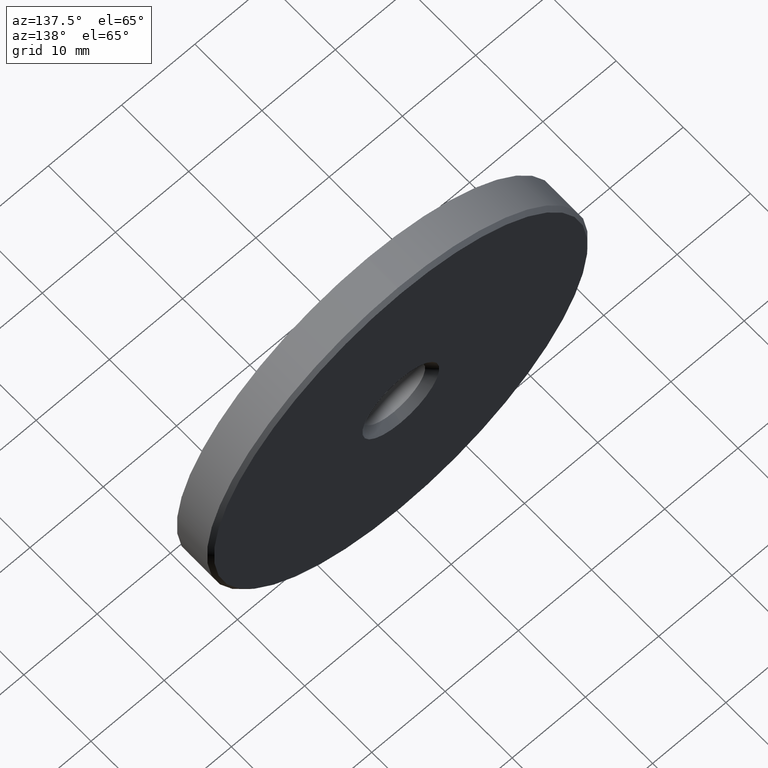
[diagram: clean part render]
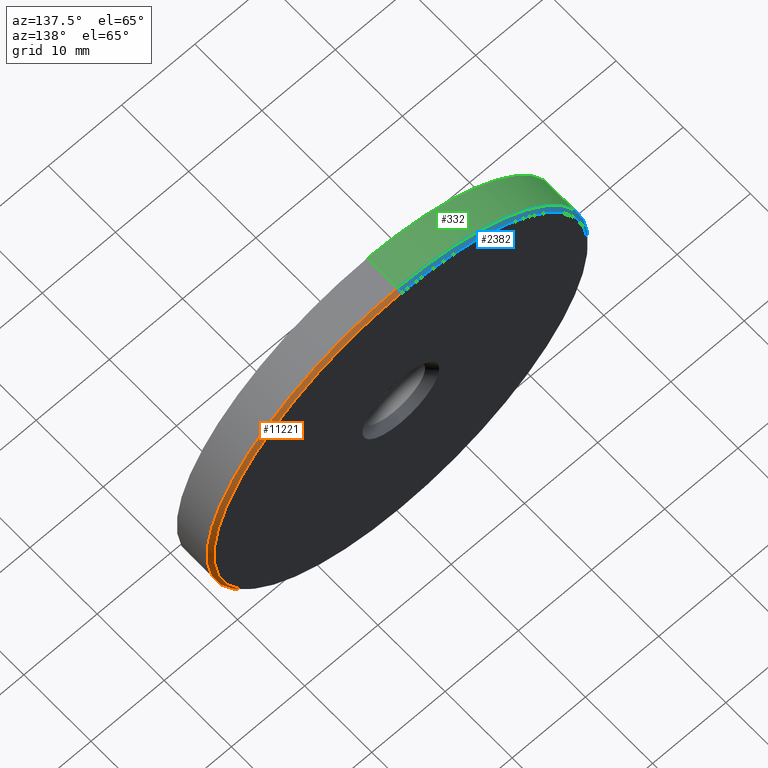
[diagram: same view with three faces highlighted in distinct colors, each labeled with its STEP entity id]
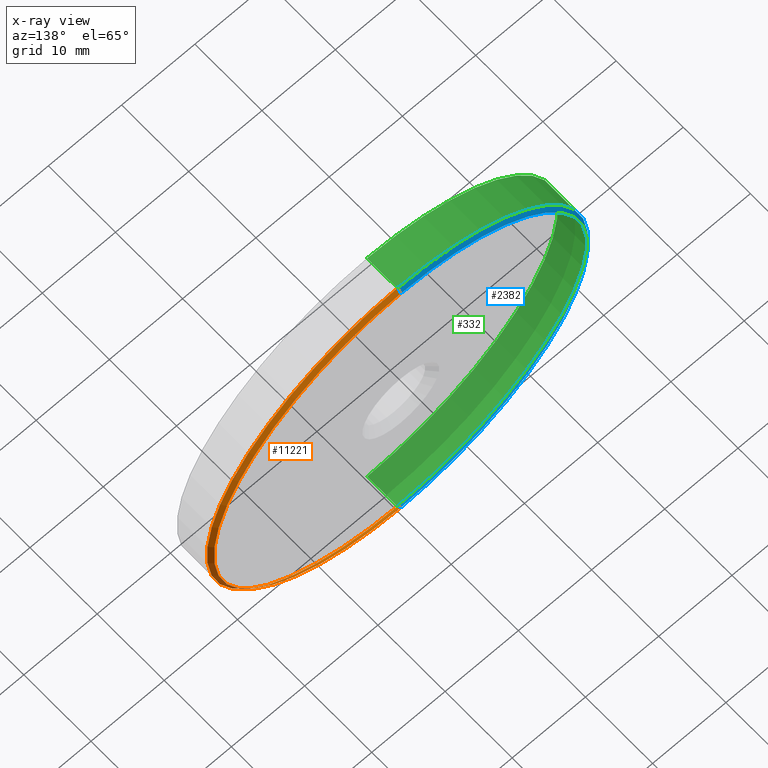
[diagram: x-ray of the same camera — body ghosted, the three highlighted faces saturated]
A machine part, auxiliary view with three faces highlighted in distinct colors.
The next image is the same camera in x-ray (body ghosted, the three faces saturated) — at least one of them is partly hidden behind the body in this view.
Their STEP definitions:

[orange] entity #11221 — the highlighted conical surface has half-angle 45 deg.
#213 = EDGE_CURVE ( 'NONE', #6262, #479, #11519, .T. ) ;
#326 = ORIENTED_EDGE ( 'NONE', *, *, #11776, .F. ) ;
#339 = DIRECTION ( 'NONE',  ( 0.000000000000000000, -0.7071067811865451302, -0.7071067811865500152 ) ) ;
#479 = VERTEX_POINT ( 'NONE', #11672 ) ;
#487 = ORIENTED_EDGE ( 'NONE', *, *, #8483, .F. ) ;
#591 = VECTOR ( 'NONE', #1959, 1000.000000000000114 ) ;
#744 = AXIS2_PLACEMENT_3D ( 'NONE', #12241, #14662, #3861 ) ;
#989 = CARTESIAN_POINT ( 'NONE',  ( 0.000000000000000000, 2.500000000000000000, 0.000000000000000000 ) ) ;
#1067 = VERTEX_POINT ( 'NONE', #11909 ) ;
#1959 = DIRECTION ( 'NONE',  ( 8.659560562354962440E-17, -0.7071067811865451302, 0.7071067811865500152 ) ) ;
#2118 = DIRECTION ( 'NONE',  ( 0.000000000000000000, 0.000000000000000000, 1.000000000000000000 ) ) ;
#2896 = CARTESIAN_POINT ( 'NONE',  ( 3.153465507804434404E-15, 2.500000000000000000, 25.50000000000000000 ) ) ;
#3280 = VECTOR ( 'NONE', #339, 1000.000000000000114 ) ;
#3474 = LINE ( 'NONE', #7269, #3280 ) ;
#3604 = EDGE_LOOP ( 'NONE', ( #487, #11749, #12016, #326 ) ) ;
#3861 = DIRECTION ( 'NONE',  ( 0.000000000000000000, 0.000000000000000000, -1.000000000000000000 ) ) ;
#4391 = CIRCLE ( 'NONE', #13470, 26.00000000000000000 ) ;
#4523 = CARTESIAN_POINT ( 'NONE',  ( 0.000000000000000000, 2.000000000000003553, 0.000000000000000000 ) ) ;
#5131 = CIRCLE ( 'NONE', #7583, 25.50000000000000000 ) ;
#5978 = FACE_OUTER_BOUND ( 'NONE', #3604, .T. ) ;
#6262 = VERTEX_POINT ( 'NONE', #2896 ) ;
#6927 = VERTEX_POINT ( 'NONE', #12800 ) ;
#7269 = CARTESIAN_POINT ( 'NONE',  ( 0.000000000000000000, 2.000000000000003553, -26.00000000000000000 ) ) ;
#7583 = AXIS2_PLACEMENT_3D ( 'NONE', #989, #14230, #9417 ) ;
#7881 = CARTESIAN_POINT ( 'NONE',  ( 3.184081677783118191E-15, 2.000000000000003553, 26.00000000000000000 ) ) ;
#8483 = EDGE_CURVE ( 'NONE', #6262, #1067, #5131, .T. ) ;
#9366 = DIRECTION ( 'NONE',  ( -0.000000000000000000, -1.000000000000000000, -0.000000000000000000 ) ) ;
#9417 = DIRECTION ( 'NONE',  ( 0.000000000000000000, 0.000000000000000000, 1.000000000000000000 ) ) ;
#10344 = EDGE_CURVE ( 'NONE', #6927, #479, #4391, .T. ) ;
#11221 = ADVANCED_FACE ( 'NONE', ( #5978 ), #15596, .T. ) ;
#11519 = LINE ( 'NONE', #7881, #591 ) ;
#11672 = CARTESIAN_POINT ( 'NONE',  ( 3.184081677783118191E-15, 2.000000000000003553, 26.00000000000000000 ) ) ;
#11749 = ORIENTED_EDGE ( 'NONE', *, *, #213, .T. ) ;
#11776 = EDGE_CURVE ( 'NONE', #1067, #6927, #3474, .T. ) ;
#11909 = CARTESIAN_POINT ( 'NONE',  ( 0.000000000000000000, 2.500000000000000000, -25.50000000000000000 ) ) ;
#12016 = ORIENTED_EDGE ( 'NONE', *, *, #10344, .F. ) ;
#12241 = CARTESIAN_POINT ( 'NONE',  ( 0.000000000000000000, 2.000000000000003553, 0.000000000000000000 ) ) ;
#12800 = CARTESIAN_POINT ( 'NONE',  ( 0.000000000000000000, 2.000000000000003553, -26.00000000000000000 ) ) ;
#13470 = AXIS2_PLACEMENT_3D ( 'NONE', #4523, #9366, #2118 ) ;
#14230 = DIRECTION ( 'NONE',  ( 0.000000000000000000, 1.000000000000000000, 0.000000000000000000 ) ) ;
#14662 = DIRECTION ( 'NONE',  ( -0.000000000000000000, -1.000000000000000000, -0.000000000000000000 ) ) ;
#15596 = CONICAL_SURFACE ( 'NONE', #744, 26.00000000000000000, 0.7853981633974517207 ) ;

[blue] entity #2382 — the highlighted conical surface has half-angle 45 deg.
#113 = AXIS2_PLACEMENT_3D ( 'NONE', #8237, #3440, #15410 ) ;
#213 = EDGE_CURVE ( 'NONE', #6262, #479, #11519, .T. ) ;
#339 = DIRECTION ( 'NONE',  ( 0.000000000000000000, -0.7071067811865451302, -0.7071067811865500152 ) ) ;
#445 = CARTESIAN_POINT ( 'NONE',  ( 0.000000000000000000, 2.000000000000003553, 0.000000000000000000 ) ) ;
#479 = VERTEX_POINT ( 'NONE', #11672 ) ;
#591 = VECTOR ( 'NONE', #1959, 1000.000000000000114 ) ;
#914 = AXIS2_PLACEMENT_3D ( 'NONE', #445, #6348, #14791 ) ;
#1067 = VERTEX_POINT ( 'NONE', #11909 ) ;
#1959 = DIRECTION ( 'NONE',  ( 8.659560562354962440E-17, -0.7071067811865451302, 0.7071067811865500152 ) ) ;
#2382 = ADVANCED_FACE ( 'NONE', ( #10941 ), #5853, .T. ) ;
#2653 = ORIENTED_EDGE ( 'NONE', *, *, #2929, .F. ) ;
#2896 = CARTESIAN_POINT ( 'NONE',  ( 3.153465507804434404E-15, 2.500000000000000000, 25.50000000000000000 ) ) ;
#2929 = EDGE_CURVE ( 'NONE', #1067, #6262, #8506, .T. ) ;
#3280 = VECTOR ( 'NONE', #339, 1000.000000000000114 ) ;
#3440 = DIRECTION ( 'NONE',  ( 0.000000000000000000, 1.000000000000000000, 0.000000000000000000 ) ) ;
#3474 = LINE ( 'NONE', #7269, #3280 ) ;
#5028 = EDGE_CURVE ( 'NONE', #479, #6927, #9972, .T. ) ;
#5853 = CONICAL_SURFACE ( 'NONE', #914, 26.00000000000000000, 0.7853981633974517207 ) ;
#6262 = VERTEX_POINT ( 'NONE', #2896 ) ;
#6348 = DIRECTION ( 'NONE',  ( -0.000000000000000000, -1.000000000000000000, -0.000000000000000000 ) ) ;
#6831 = DIRECTION ( 'NONE',  ( 0.000000000000000000, 0.000000000000000000, 1.000000000000000000 ) ) ;
#6927 = VERTEX_POINT ( 'NONE', #12800 ) ;
#7269 = CARTESIAN_POINT ( 'NONE',  ( 0.000000000000000000, 2.000000000000003553, -26.00000000000000000 ) ) ;
#7280 = ORIENTED_EDGE ( 'NONE', *, *, #213, .F. ) ;
#7324 = ORIENTED_EDGE ( 'NONE', *, *, #11776, .T. ) ;
#7881 = CARTESIAN_POINT ( 'NONE',  ( 3.184081677783118191E-15, 2.000000000000003553, 26.00000000000000000 ) ) ;
#8237 = CARTESIAN_POINT ( 'NONE',  ( 0.000000000000000000, 2.500000000000000000, 0.000000000000000000 ) ) ;
#8506 = CIRCLE ( 'NONE', #113, 25.50000000000000000 ) ;
#9972 = CIRCLE ( 'NONE', #14268, 26.00000000000000000 ) ;
#10063 = EDGE_LOOP ( 'NONE', ( #7280, #2653, #7324, #14573 ) ) ;
#10941 = FACE_OUTER_BOUND ( 'NONE', #10063, .T. ) ;
#11519 = LINE ( 'NONE', #7881, #591 ) ;
#11672 = CARTESIAN_POINT ( 'NONE',  ( 3.184081677783118191E-15, 2.000000000000003553, 26.00000000000000000 ) ) ;
#11776 = EDGE_CURVE ( 'NONE', #1067, #6927, #3474, .T. ) ;
#11909 = CARTESIAN_POINT ( 'NONE',  ( 0.000000000000000000, 2.500000000000000000, -25.50000000000000000 ) ) ;
#12800 = CARTESIAN_POINT ( 'NONE',  ( 0.000000000000000000, 2.000000000000003553, -26.00000000000000000 ) ) ;
#13908 = CARTESIAN_POINT ( 'NONE',  ( 0.000000000000000000, 2.000000000000003553, 0.000000000000000000 ) ) ;
#14268 = AXIS2_PLACEMENT_3D ( 'NONE', #13908, #15066, #6831 ) ;
#14573 = ORIENTED_EDGE ( 'NONE', *, *, #5028, .F. ) ;
#14791 = DIRECTION ( 'NONE',  ( 0.000000000000000000, 0.000000000000000000, -1.000000000000000000 ) ) ;
#15066 = DIRECTION ( 'NONE',  ( -0.000000000000000000, -1.000000000000000000, -0.000000000000000000 ) ) ;
#15410 = DIRECTION ( 'NONE',  ( 0.000000000000000000, 0.000000000000000000, 1.000000000000000000 ) ) ;

[green] entity #332 — the highlighted cylindrical surface (partial cylindrical patch) has radius 26 mm, axis along (-0, -1, -0).
#306 = ORIENTED_EDGE ( 'NONE', *, *, #2507, .F. ) ;
#332 = ADVANCED_FACE ( 'NONE', ( #6263 ), #1350, .T. ) ;
#479 = VERTEX_POINT ( 'NONE', #11672 ) ;
#950 = LINE ( 'NONE', #15451, #12097 ) ;
#1282 = DIRECTION ( 'NONE',  ( -0.000000000000000000, -1.000000000000000000, -0.000000000000000000 ) ) ;
#1350 = CYLINDRICAL_SURFACE ( 'NONE', #13591, 26.00000000000000000 ) ;
#2265 = CIRCLE ( 'NONE', #7755, 26.00000000000000000 ) ;
#2372 = CARTESIAN_POINT ( 'NONE',  ( 3.184081677783118191E-15, -2.500000000000000000, 26.00000000000000000 ) ) ;
#2507 = EDGE_CURVE ( 'NONE', #479, #6017, #13762, .T. ) ;
#2550 = CARTESIAN_POINT ( 'NONE',  ( 0.000000000000000000, -2.500000000000000000, -26.00000000000000000 ) ) ;
#2603 = DIRECTION ( 'NONE',  ( 0.000000000000000000, 0.000000000000000000, -1.000000000000000000 ) ) ;
#2949 = VERTEX_POINT ( 'NONE', #2550 ) ;
#4981 = DIRECTION ( 'NONE',  ( -0.000000000000000000, -1.000000000000000000, -0.000000000000000000 ) ) ;
#5028 = EDGE_CURVE ( 'NONE', #479, #6927, #9972, .T. ) ;
#5479 = DIRECTION ( 'NONE',  ( -0.000000000000000000, -1.000000000000000000, -0.000000000000000000 ) ) ;
#6017 = VERTEX_POINT ( 'NONE', #2372 ) ;
#6263 = FACE_OUTER_BOUND ( 'NONE', #13809, .T. ) ;
#6831 = DIRECTION ( 'NONE',  ( 0.000000000000000000, 0.000000000000000000, 1.000000000000000000 ) ) ;
#6927 = VERTEX_POINT ( 'NONE', #12800 ) ;
#7755 = AXIS2_PLACEMENT_3D ( 'NONE', #14775, #4981, #2603 ) ;
#8526 = ORIENTED_EDGE ( 'NONE', *, *, #14222, .T. ) ;
#9071 = CARTESIAN_POINT ( 'NONE',  ( 0.000000000000000000, -2.500000000000000444, 0.000000000000000000 ) ) ;
#9609 = ORIENTED_EDGE ( 'NONE', *, *, #5028, .T. ) ;
#9972 = CIRCLE ( 'NONE', #14268, 26.00000000000000000 ) ;
#10082 = ORIENTED_EDGE ( 'NONE', *, *, #13833, .F. ) ;
#10216 = DIRECTION ( 'NONE',  ( 0.000000000000000000, 0.000000000000000000, -1.000000000000000000 ) ) ;
#11672 = CARTESIAN_POINT ( 'NONE',  ( 3.184081677783118191E-15, 2.000000000000003553, 26.00000000000000000 ) ) ;
#11965 = DIRECTION ( 'NONE',  ( -0.000000000000000000, -1.000000000000000000, -0.000000000000000000 ) ) ;
#12097 = VECTOR ( 'NONE', #11965, 1000.000000000000000 ) ;
#12800 = CARTESIAN_POINT ( 'NONE',  ( 0.000000000000000000, 2.000000000000003553, -26.00000000000000000 ) ) ;
#13591 = AXIS2_PLACEMENT_3D ( 'NONE', #9071, #5479, #10216 ) ;
#13762 = LINE ( 'NONE', #15638, #14709 ) ;
#13809 = EDGE_LOOP ( 'NONE', ( #306, #9609, #8526, #10082 ) ) ;
#13833 = EDGE_CURVE ( 'NONE', #6017, #2949, #2265, .T. ) ;
#13908 = CARTESIAN_POINT ( 'NONE',  ( 0.000000000000000000, 2.000000000000003553, 0.000000000000000000 ) ) ;
#14222 = EDGE_CURVE ( 'NONE', #6927, #2949, #950, .T. ) ;
#14268 = AXIS2_PLACEMENT_3D ( 'NONE', #13908, #15066, #6831 ) ;
#14709 = VECTOR ( 'NONE', #1282, 1000.000000000000000 ) ;
#14775 = CARTESIAN_POINT ( 'NONE',  ( 0.000000000000000000, -2.500000000000000000, 0.000000000000000000 ) ) ;
#15066 = DIRECTION ( 'NONE',  ( -0.000000000000000000, -1.000000000000000000, -0.000000000000000000 ) ) ;
#15451 = CARTESIAN_POINT ( 'NONE',  ( 0.000000000000000000, -2.500000000000000444, -26.00000000000000000 ) ) ;
#15638 = CARTESIAN_POINT ( 'NONE',  ( 3.184081677783118191E-15, -2.500000000000000444, 26.00000000000000000 ) ) ;